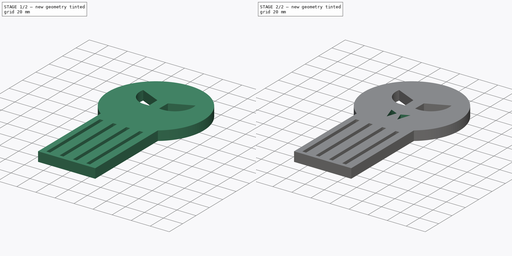
[diagram: build sequence overview — one tinted view per stage of 2, left to right]
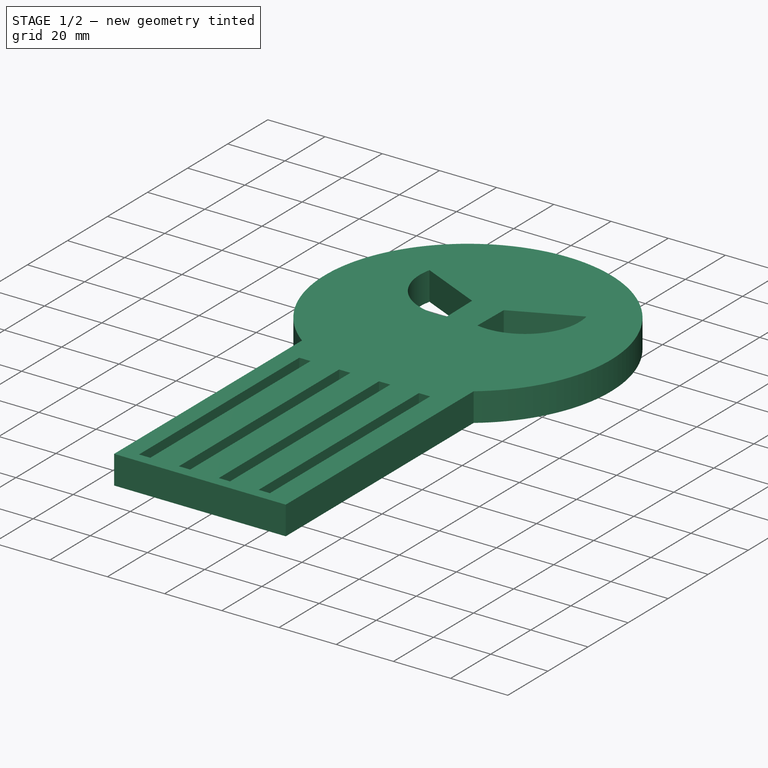
[diagram: stage 1 of 2 — iso view after this stage's code; geometry added in this stage tinted green]
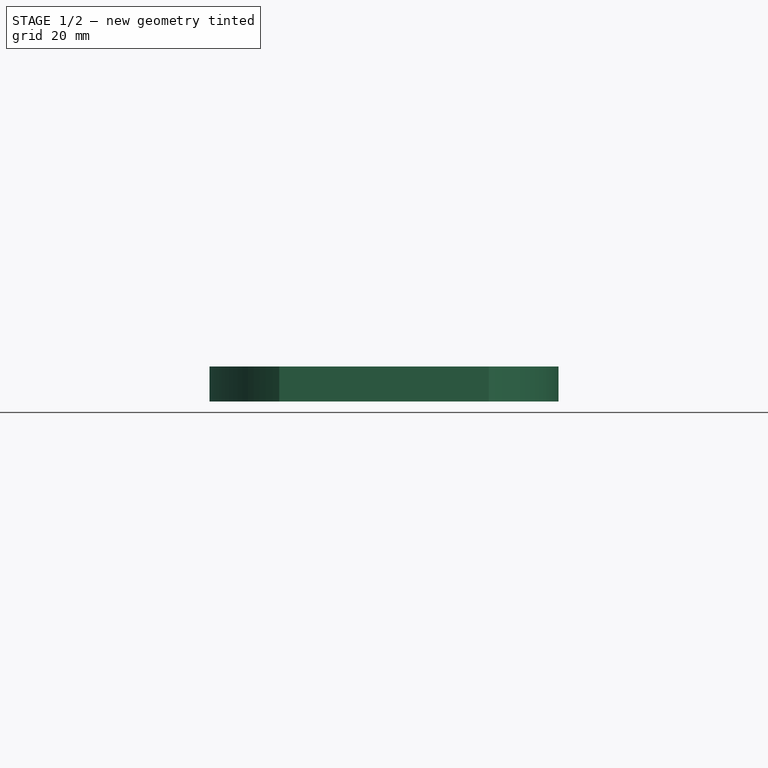
[diagram: stage 1 of 2 — front view after this stage's code; geometry added in this stage tinted green]
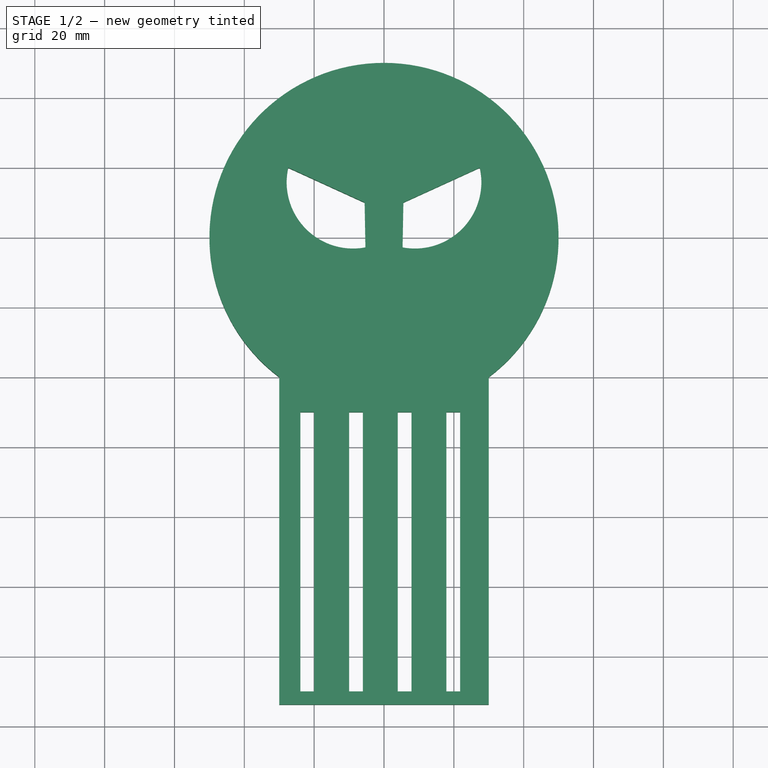
[diagram: stage 1 of 2 — top view after this stage's code; geometry added in this stage tinted green]
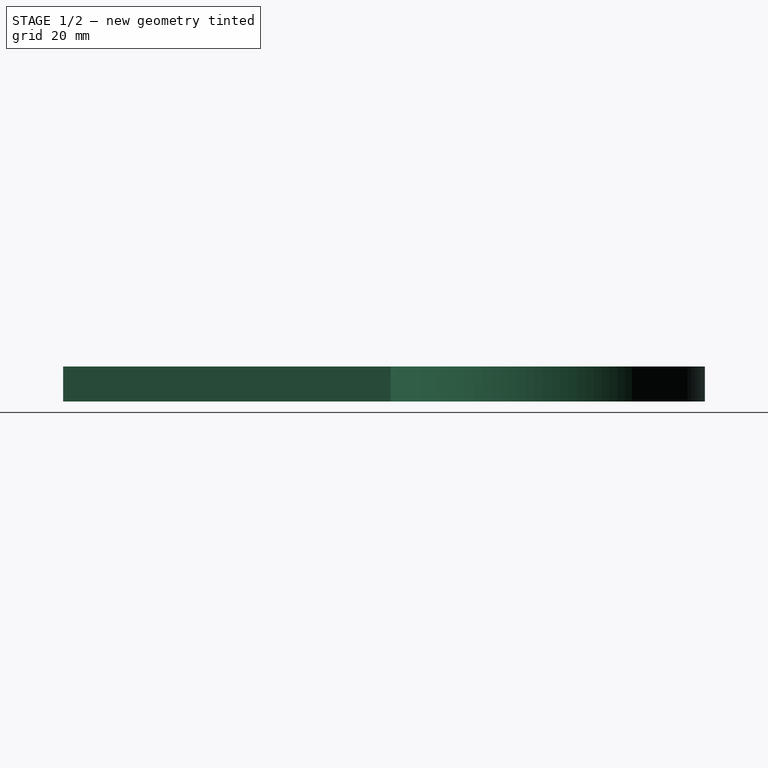
[diagram: stage 1 of 2 — right view after this stage's code; geometry added in this stage tinted green]
FCSTD DOCUMENT  (FreeCAD 0.16R6707 (Git))
Label: Calavera
License: CreativeCommons Attribution-ShareAlike
LicenseURL: http://creativecommons.org/licenses/by-sa/4.0/
objects: Sketcher::SketchObject×3, PartDesign::Pocket×2, PartDesign::Pad×1
note: 9 computed .brp shape members not serialized (recipe doc carries the construction recipe); baked Part::Feature solids carry a one-line shape summary decoded from their .brp

FEATURE [Sketcher::SketchObject] Sketch  label="Boceto_cra"
  sketch-geometry (10):
    g0: ArcOfCircle CenterX=0 CenterY=0 CenterZ=0 NormalX=0 NormalY=0 NormalZ=1 Radius=50 StartAngle=5.35589 EndAngle=10.3521
    g1: LineSegment StartX=30 StartY=-40 StartZ=0 EndX=30 EndY=-133.788 EndZ=0
    g2: LineSegment StartX=30 StartY=-133.788 StartZ=0 EndX=-30 EndY=-133.788 EndZ=0
    g3: LineSegment StartX=-30 StartY=-133.788 StartZ=0 EndX=-30 EndY=-40 EndZ=0
    g4: LineSegment StartX=5.32069 StartY=-2.8508 StartZ=0 EndX=5.5463 EndY=10 EndZ=0
    g5: LineSegment StartX=5.5463 StartY=10 StartZ=0 EndX=27.4301 EndY=20 EndZ=0
    g6: ArcOfCircle CenterX=8.85526 CenterY=15.8507 CenterZ=0 NormalX=0 NormalY=0 NormalZ=1 Radius=19.0326 StartAngle=4.52559 EndAngle=6.50296
    g7: LineSegment StartX=-5.32069 StartY=-2.8508 StartZ=0 EndX=-5.5463 EndY=10 EndZ=0
    g8: LineSegment StartX=-5.5463 StartY=10 StartZ=0 EndX=-27.4301 EndY=20 EndZ=0
    g9: ArcOfCircle CenterX=-8.85526 CenterY=15.8507 CenterZ=0 NormalX=0 NormalY=0 NormalZ=1 Radius=19.0326 StartAngle=2.92182 EndAngle=4.89918
  constraints (17):
    c: Coincident(g1,g2)
    c: Coincident(g2,g3)
    c: Horizontal(g2)
    c: Vertical(g1)
    c: Vertical(g3)
    c: Coincident(g4,g5)
    c: PointOnObject(g6,g5)
    c: PointOnObject(g6,g4)
    c: Coincident(g0,g3)
    c: Coincident(g0,g1)
    c: Coincident(g4,g6)
    c: Coincident(g5,g6)
    c: Coincident(g7,g8)
    c: PointOnObject(g9,g8)
    c: PointOnObject(g9,g7)
    c: Coincident(g7,g9)
    c: Coincident(g8,g9)
FEATURE [PartDesign::Pad] Pad  label="Cara"
  Length = 10
  Length2 = 100
  Sketch = -> Sketch
  Type = 0
FEATURE [Sketcher::SketchObject] Sketch001  label="Boceto_boca"
  Placement = pos=(0,0,10) rot=(0,0,1;0rad)
  Support = -> Pad [Face12]
  sketch-geometry (19):
    g0: LineSegment StartX=-23.9355 StartY=-130.004 StartZ=0 EndX=-20 EndY=-130.004 EndZ=0
    g1: LineSegment StartX=-20 StartY=-130.004 StartZ=0 EndX=-20 EndY=-50 EndZ=0
    g2: LineSegment StartX=-20 StartY=-50 StartZ=0 EndX=-23.9355 EndY=-50 EndZ=0
    g3: LineSegment StartX=-23.9355 StartY=-50 StartZ=0 EndX=-23.9355 EndY=-130.004 EndZ=0
    g4: LineSegment StartX=-10 StartY=-130.004 StartZ=0 EndX=-6.06454 EndY=-130.004 EndZ=0
    g5: LineSegment StartX=-6.06454 StartY=-130.004 StartZ=0 EndX=-6.06454 EndY=-50 EndZ=0
    g6: LineSegment StartX=-6.06454 StartY=-50 StartZ=0 EndX=-10 EndY=-50 EndZ=0
    g7: LineSegment StartX=-10 StartY=-50 StartZ=0 EndX=-10 EndY=-130.004 EndZ=0
    g8: LineSegment [constr] StartX=-23.9355 StartY=-130.004 StartZ=0 EndX=-10 EndY=-130.004 EndZ=0
    g9: LineSegment StartX=3.93547 StartY=-130.004 StartZ=0 EndX=7.87093 EndY=-130.004 EndZ=0
    g10: LineSegment StartX=7.87093 StartY=-130.004 StartZ=0 EndX=7.87093 EndY=-50 EndZ=0
    g11: LineSegment StartX=7.87093 StartY=-50 StartZ=0 EndX=3.93547 EndY=-50 EndZ=0
    g12: LineSegment StartX=3.93547 StartY=-50 StartZ=0 EndX=3.93547 EndY=-130.004 EndZ=0
    g13: LineSegment [constr] StartX=-10 StartY=-130.004 StartZ=0 EndX=3.93547 EndY=-130.004 EndZ=0
    g14: LineSegment StartX=17.8709 StartY=-130.004 StartZ=0 EndX=21.8064 EndY=-130.004 EndZ=0
    g15: LineSegment StartX=21.8064 StartY=-130.004 StartZ=0 EndX=21.8064 EndY=-50 EndZ=0
    g16: LineSegment StartX=21.8064 StartY=-50 StartZ=0 EndX=17.8709 EndY=-50 EndZ=0
    g17: LineSegment StartX=17.8709 StartY=-50 StartZ=0 EndX=17.8709 EndY=-130.004 EndZ=0
    g18: LineSegment [constr] StartX=3.93547 StartY=-130.004 StartZ=0 EndX=17.8709 EndY=-130.004 EndZ=0
  constraints (44):
    c: Coincident(g0,g1)
    c: Coincident(g1,g2)
    c: Coincident(g2,g3)
    c: Coincident(g3,g0)
    c: Horizontal(g0)
    c: Horizontal(g2)
    c: Vertical(g1)
    c: Vertical(g3)
    c: Coincident(g4,g5)
    c: Coincident(g5,g6)
    c: Coincident(g6,g7)
    c: Coincident(g7,g4)
    c: Horizontal(g4)
    c: Horizontal(g6)
    c: Vertical(g5)
    c: Vertical(g7)
    c: Coincident(g0,g8)
    c: Coincident(g4,g8)
    c: Distance(g8) = 13.9355
    c: Angle(g8) = 0
    c: Coincident(g9,g10)
    c: Coincident(g10,g11)
    c: Coincident(g11,g12)
    c: Coincident(g12,g9)
    c: Horizontal(g9)
    c: Horizontal(g11)
    c: Vertical(g10)
    c: Vertical(g12)
    c: Coincident(g4,g13)
    c: Coincident(g9,g13)
    c: Equal(g8,g13)
    c: Parallel(g13,g8)
    c: Coincident(g14,g15)
    c: Coincident(g15,g16)
    c: Coincident(g16,g17)
    c: Coincident(g17,g14)
    c: Horizontal(g14)
    c: Horizontal(g16)
    c: Vertical(g15)
    c: Vertical(g17)
    c: Coincident(g9,g18)
    c: Coincident(g14,g18)
    c: Equal(g8,g18)
    c: Parallel(g18,g8)
FEATURE [PartDesign::Pocket] Pocket  label="Boca"
  Length = 5
  Sketch = -> Sketch001
  Type = 1
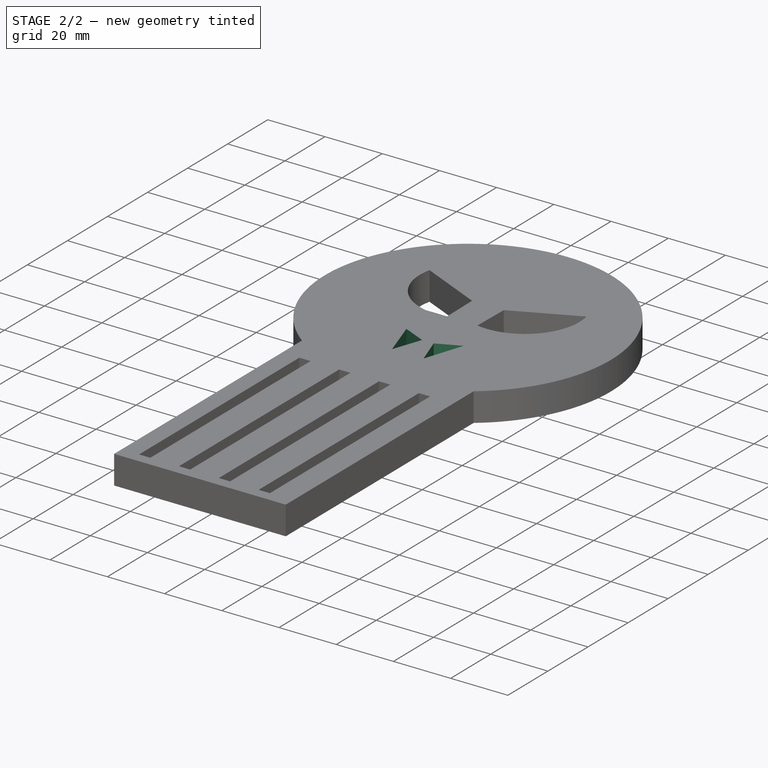
[diagram: stage 2 of 2 — iso view after this stage's code; geometry added in this stage tinted green]
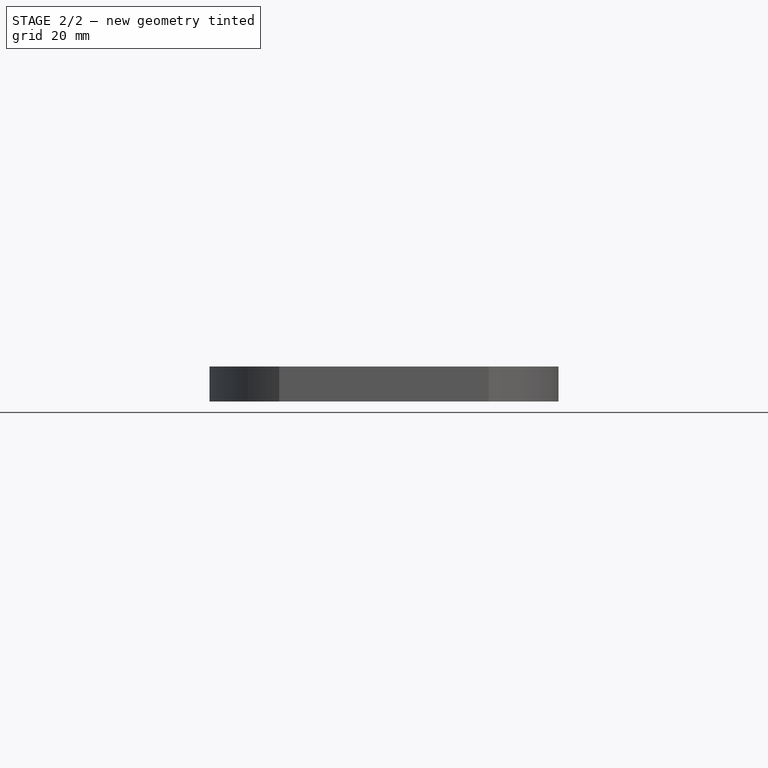
[diagram: stage 2 of 2 — front view after this stage's code; geometry added in this stage tinted green]
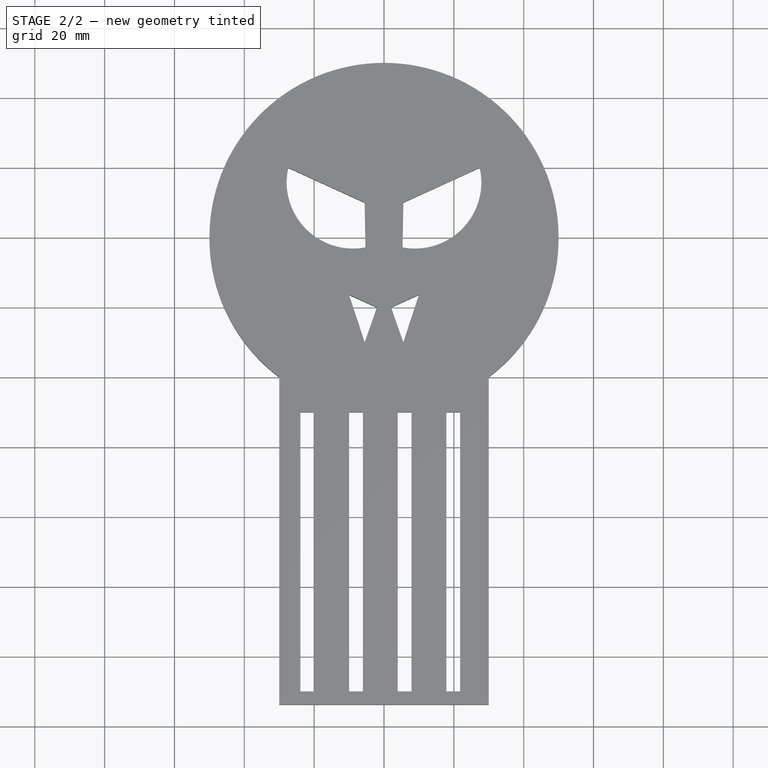
[diagram: stage 2 of 2 — top view after this stage's code; geometry added in this stage tinted green]
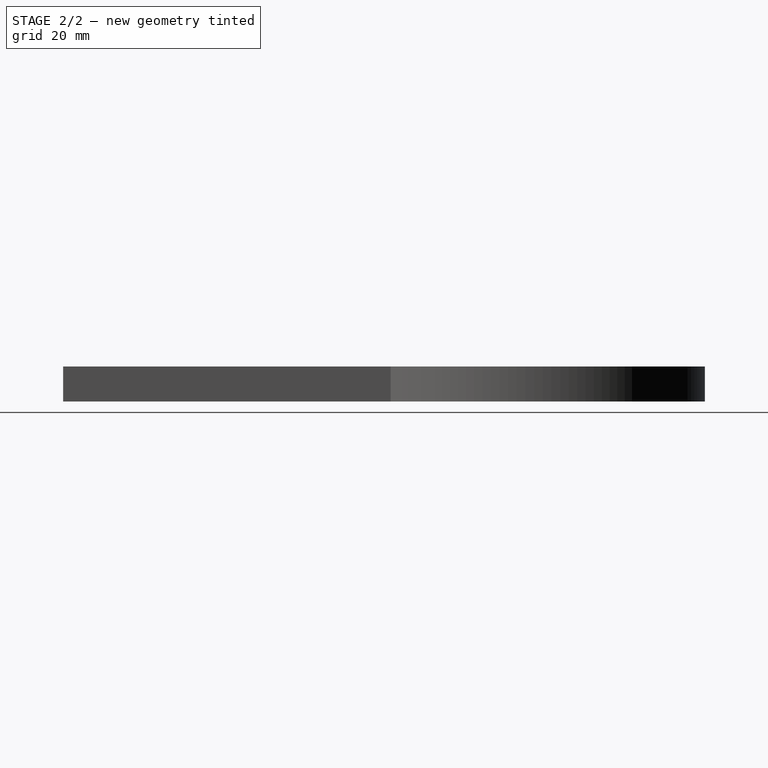
[diagram: stage 2 of 2 — right view after this stage's code; geometry added in this stage tinted green]
FEATURE [Sketcher::SketchObject] Sketch002  label="Boceto_nariz"
  Placement = pos=(0,0,10) rot=(0,0,1;0rad)
  Support = -> Pocket [Face5]
  sketch-geometry (6):
    g0: LineSegment StartX=-10 StartY=-16.418 StartZ=0 EndX=-2.0219 EndY=-20 EndZ=0
    g1: LineSegment StartX=-2.0219 StartY=-20 StartZ=0 EndX=-5.52652 EndY=-30 EndZ=0
    g2: LineSegment StartX=-5.52652 StartY=-30 StartZ=0 EndX=-10 EndY=-16.418 EndZ=0
    g3: LineSegment StartX=10 StartY=-16.418 StartZ=0 EndX=2.0219 EndY=-20 EndZ=0
    g4: LineSegment StartX=2.0219 StartY=-20 StartZ=0 EndX=5.52652 EndY=-30 EndZ=0
    g5: LineSegment StartX=5.52652 StartY=-30 StartZ=0 EndX=10 EndY=-16.418 EndZ=0
  constraints (6):
    c: Coincident(g0,g1)
    c: Coincident(g1,g2)
    c: Coincident(g0,g2)
    c: Coincident(g3,g4)
    c: Coincident(g4,g5)
    c: Coincident(g3,g5)
FEATURE [PartDesign::Pocket] Pocket001  label="Nariz"
  Length = 5
  Sketch = -> Sketch002
  Type = 1
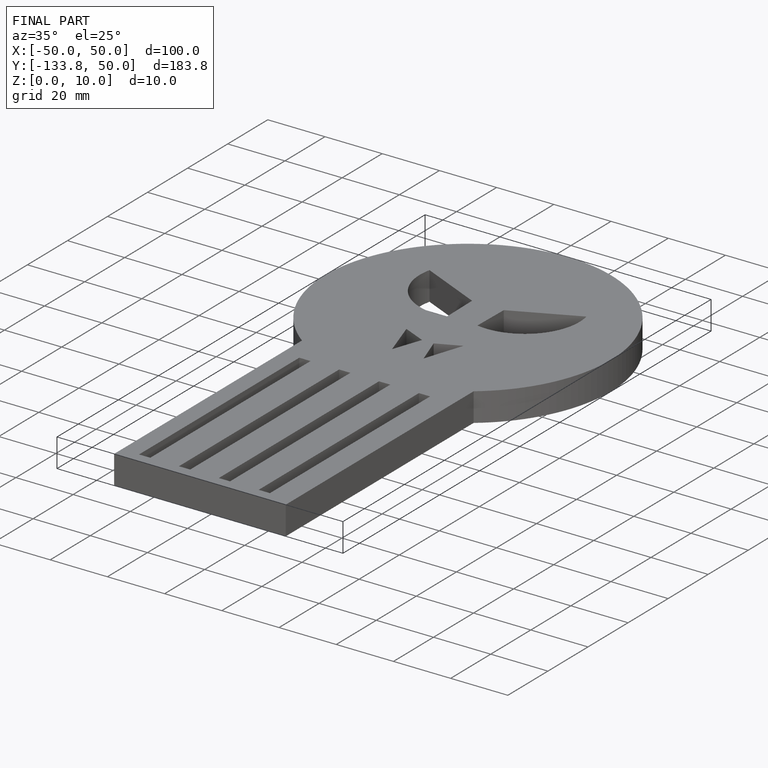
[diagram: finished part — iso view with bounding-box wireframe]
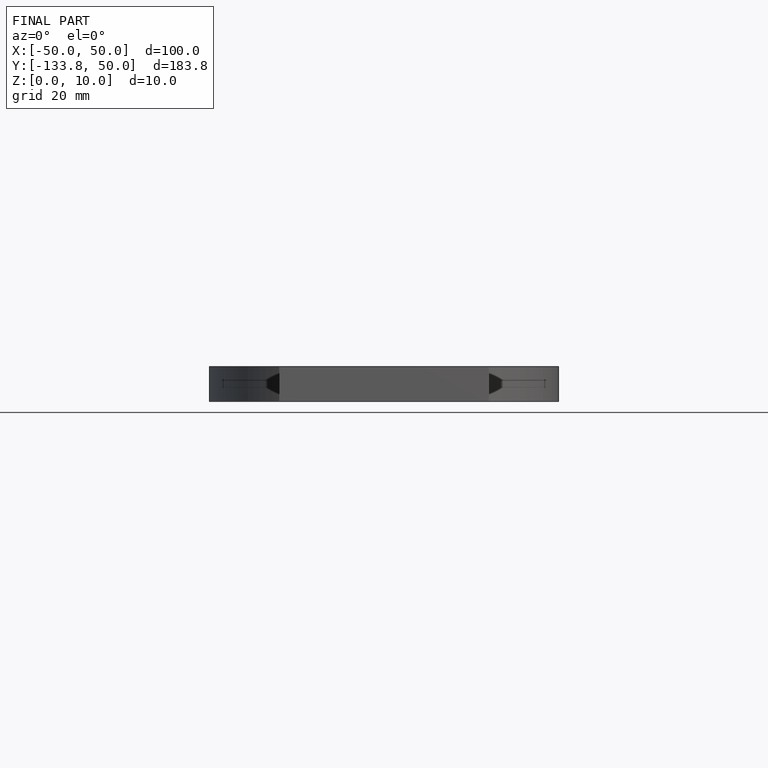
[diagram: finished part — front view with bounding-box wireframe]
